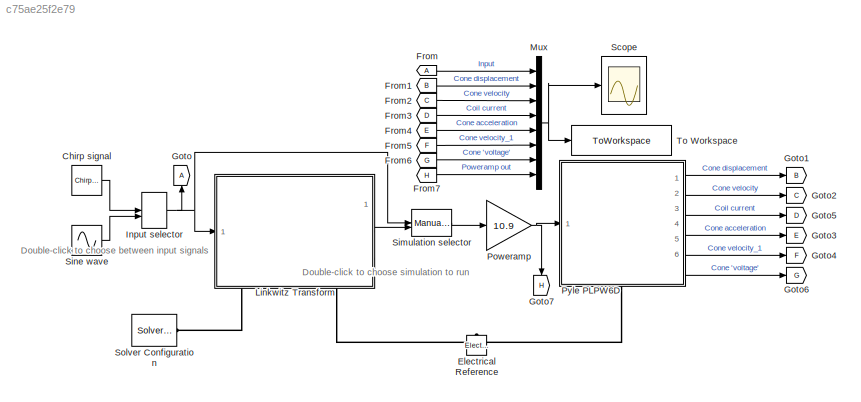
MODEL slx_c75ae25f2e79
KIND model
CONFIG AbsTol = auto
CONFIG EnableMultiTasking = off
CONFIG FixedStep = 0.000001
CONFIG MaxStep = auto
CONFIG MinStep = auto
CONFIG RelTol = 1e-3
CONFIG SampleTimeConstraint = Unconstrained
CONFIG Solver = VariableStepAuto
CONFIG SolverName = VariableStepAuto
CONFIG StartTime = 0.0
CONFIG StopTime = 1
BLOCK [Reference] Chirp signal  REF=simulink/Sources/Chirp Signal
  Ports = [0, 1]
  SourceBlock = simulink/Sources/Chirp Signal
  SourceProductBaseCode = SL
  SourceType = chirp
BLOCK [Reference] Electrical Reference  REF=fl_lib/Electrical/Electrical Elements/Electrical Reference
  NameLocation = right
  Ports = [0, 0, 0, 0, 0, 1]
  SourceBlock = fl_lib/Electrical/Electrical Elements/Electrical Reference
  SourceProductBaseCode = MT,SS
  SourceType = Electrical Reference
BLOCK [From] From
BLOCK [From] From1
  GotoTag = B
BLOCK [From] From2
  GotoTag = C
BLOCK [From] From3
  GotoTag = D
BLOCK [From] From4
  GotoTag = E
BLOCK [From] From5
  GotoTag = F
BLOCK [From] From6
  GotoTag = G
BLOCK [From] From7
  GotoTag = H
BLOCK [Goto] Goto
  NameLocation = right
BLOCK [Goto] Goto1
  GotoTag = B
BLOCK [Goto] Goto2
  GotoTag = C
BLOCK [Goto] Goto3
  GotoTag = E
BLOCK [Goto] Goto4
  GotoTag = F
BLOCK [Goto] Goto5
  GotoTag = D
BLOCK [Goto] Goto6
  GotoTag = G
BLOCK [Goto] Goto7
  GotoTag = H
  NameLocation = left
BLOCK [ManualSwitch] Input selector
  CurrentSetting = 0
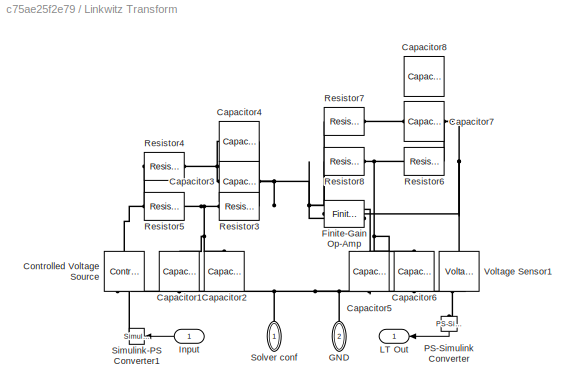
BLOCK [SubSystem] Linkwitz Transform
  PortSchema = {"entries":[{"content":{"sides":[{"content":{"connectorIds":["In1"]},"type":"ConnectorPlacement.EquallySpacedRectSide","uuid":"c176afcd-22cf-4a96-95a5-2f4a01c27625"},{"content":{"connectorIds":["Out1"],"side":"RIGHT"},"type":"ConnectorPlacement.EquallySpacedRectSide","uuid":"3d91d6b3-2fcd-4fa9-a9e2-01e15fe19188"},{"content":{"connectorIds":[],"side":"TOP"},"type":"ConnectorPlacement.EquallySpacedR...<+403ch>
  Ports = [1, 1, 0, 0, 0, 0, 2]
  RequestExecContextInheritance = off
BLOCK [Reference] Linkwitz Transform/Capacitor1  REF=fl_lib/Electrical/Electrical Elements/Capacitor
  NameLocation = left
  Ports = [0, 0, 0, 0, 0, 1, 1]
  SourceBlock = fl_lib/Electrical/Electrical Elements/Capacitor
  SourceProductBaseCode = SS
  SourceType = Capacitor
BLOCK [Reference] Linkwitz Transform/Capacitor2  REF=fl_lib/Electrical/Electrical Elements/Capacitor
  NameLocation = left
  Ports = [0, 0, 0, 0, 0, 1, 1]
  SourceBlock = fl_lib/Electrical/Electrical Elements/Capacitor
  SourceProductBaseCode = SS
  SourceType = Capacitor
BLOCK [Reference] Linkwitz Transform/Capacitor3  REF=fl_lib/Electrical/Electrical Elements/Capacitor
  Ports = [0, 0, 0, 0, 0, 1, 1]
  SourceBlock = fl_lib/Electrical/Electrical Elements/Capacitor
  SourceProductBaseCode = SS
  SourceType = Capacitor
BLOCK [Reference] Linkwitz Transform/Capacitor4  REF=fl_lib/Electrical/Electrical Elements/Capacitor
  Ports = [0, 0, 0, 0, 0, 1, 1]
  SourceBlock = fl_lib/Electrical/Electrical Elements/Capacitor
  SourceProductBaseCode = SS
  SourceType = Capacitor
BLOCK [Reference] Linkwitz Transform/Capacitor5  REF=fl_lib/Electrical/Electrical Elements/Capacitor
  NameLocation = left
  Ports = [0, 0, 0, 0, 0, 1, 1]
  SourceBlock = fl_lib/Electrical/Electrical Elements/Capacitor
  SourceProductBaseCode = SS
  SourceType = Capacitor
BLOCK [Reference] Linkwitz Transform/Capacitor6  REF=fl_lib/Electrical/Electrical Elements/Capacitor
  NameLocation = left
  Ports = [0, 0, 0, 0, 0, 1, 1]
  SourceBlock = fl_lib/Electrical/Electrical Elements/Capacitor
  SourceProductBaseCode = SS
  SourceType = Capacitor
BLOCK [Reference] Linkwitz Transform/Capacitor7  REF=fl_lib/Electrical/Electrical Elements/Capacitor
  Ports = [0, 0, 0, 0, 0, 1, 1]
  SourceBlock = fl_lib/Electrical/Electrical Elements/Capacitor
  SourceProductBaseCode = SS
  SourceType = Capacitor
BLOCK [Reference] Linkwitz Transform/Capacitor8  REF=fl_lib/Electrical/Electrical Elements/Capacitor
  Ports = [0, 0, 0, 0, 0, 1, 1]
  SourceBlock = fl_lib/Electrical/Electrical Elements/Capacitor
  SourceProductBaseCode = SS
  SourceType = Capacitor
BLOCK [Reference] Linkwitz Transform/Controlled Voltage Source  REF=fl_lib/Electrical/Electrical Sources/Controlled Voltage
Source
  NameLocation = right
  Ports = [0, 0, 0, 0, 0, 1, 2]
  SourceBlock = fl_lib/Electrical/Electrical Sources/Controlled Voltage\nSource
  SourceProductBaseCode = SS
  SourceType = Controlled Voltage\nSource
BLOCK [Reference] Linkwitz Transform/Finite-Gain Op-Amp  REF=ee_lib/Integrated Circuits/Finite-Gain Op-Amp
  Ports = [0, 0, 0, 0, 0, 2, 1]
  SourceBlock = ee_lib/Integrated Circuits/Finite-Gain Op-Amp
  SourceProductBaseCode = PS
  SourceType = Finite-Gain Op-Amp
BLOCK [PMIOPort] Linkwitz Transform/GND
  NameLocation = left
  Port = 2
  Side = Right
BLOCK [Inport] Linkwitz Transform/Input
  NameLocation = top
BLOCK [Outport] Linkwitz Transform/LT Out
  NameLocation = top
BLOCK [Reference] Linkwitz Transform/PS-Simulink Converter  REF=nesl_utility/PS-Simulink
Converter
  NameLocation = left
  Ports = [0, 1, 0, 0, 0, 1]
  SourceBlock = nesl_utility/PS-Simulink\nConverter
  SourceProductBaseCode = SS
  SourceType = PS-Simulink\nConverter
BLOCK [Reference] Linkwitz Transform/Resistor3  REF=fl_lib/Electrical/Electrical Elements/Resistor
  Ports = [0, 0, 0, 0, 0, 1, 1]
  SourceBlock = fl_lib/Electrical/Electrical Elements/Resistor
  SourceProductBaseCode = SS
  SourceType = Resistor
BLOCK [Reference] Linkwitz Transform/Resistor4  REF=fl_lib/Electrical/Electrical Elements/Resistor
  Ports = [0, 0, 0, 0, 0, 1, 1]
  SourceBlock = fl_lib/Electrical/Electrical Elements/Resistor
  SourceProductBaseCode = SS
  SourceType = Resistor
BLOCK [Reference] Linkwitz Transform/Resistor5  REF=fl_lib/Electrical/Electrical Elements/Resistor
  Ports = [0, 0, 0, 0, 0, 1, 1]
  SourceBlock = fl_lib/Electrical/Electrical Elements/Resistor
  SourceProductBaseCode = SS
  SourceType = Resistor
BLOCK [Reference] Linkwitz Transform/Resistor6  REF=fl_lib/Electrical/Electrical Elements/Resistor
  Ports = [0, 0, 0, 0, 0, 1, 1]
  SourceBlock = fl_lib/Electrical/Electrical Elements/Resistor
  SourceProductBaseCode = SS
  SourceType = Resistor
BLOCK [Reference] Linkwitz Transform/Resistor7  REF=fl_lib/Electrical/Electrical Elements/Resistor
  Ports = [0, 0, 0, 0, 0, 1, 1]
  SourceBlock = fl_lib/Electrical/Electrical Elements/Resistor
  SourceProductBaseCode = SS
  SourceType = Resistor
BLOCK [Reference] Linkwitz Transform/Resistor8  REF=fl_lib/Electrical/Electrical Elements/Resistor
  Ports = [0, 0, 0, 0, 0, 1, 1]
  SourceBlock = fl_lib/Electrical/Electrical Elements/Resistor
  SourceProductBaseCode = SS
  SourceType = Resistor
BLOCK [Reference] Linkwitz Transform/Simulink-PS Converter1  REF=nesl_utility/Simulink-PS
Converter
  NameLocation = top
  Ports = [1, 0, 0, 0, 0, 0, 1]
  SourceBlock = nesl_utility/Simulink-PS\nConverter
  SourceProductBaseCode = SS
  SourceType = Simulink-PS\nConverter
BLOCK [PMIOPort] Linkwitz Transform/Solver conf
  NameLocation = left
  Side = Right
BLOCK [Reference] Linkwitz Transform/Voltage Sensor1  REF=fl_lib/Electrical/Electrical Sensors/Voltage Sensor
  NameLocation = right
  Ports = [0, 0, 0, 0, 0, 1, 2]
  SourceBlock = fl_lib/Electrical/Electrical Sensors/Voltage Sensor
  SourceProductBaseCode = SS
  SourceType = Voltage Sensor
BLOCK [Mux] Mux
  DisplayOption = bar
  Inputs = 8
  Ports = [8, 1]
BLOCK [Gain] Poweramp
  Gain = 10.9
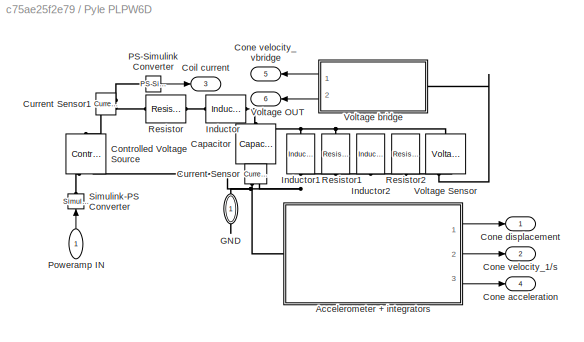
BLOCK [SubSystem] Pyle PLPW6D
  PortSchema = {"entries":[{"content":{"sides":[{"content":{"connectorIds":["In1"]},"type":"ConnectorPlacement.EquallySpacedRectSide","uuid":"55797129-f68c-4c08-9179-5bd73ddaf456"},{"content":{"connectorIds":["Out1","Out2","Out3","Out4","Out5","Out6"],"side":"RIGHT"},"type":"ConnectorPlacement.EquallySpacedRectSide","uuid":"cd82eb0c-b61b-42dc-852e-e59ea1718ce1"},{"content":{"connectorIds":[],"side":"TOP"},"type"...<+429ch>
  Ports = [1, 6, 0, 0, 0, 0, 1]
  RequestExecContextInheritance = off
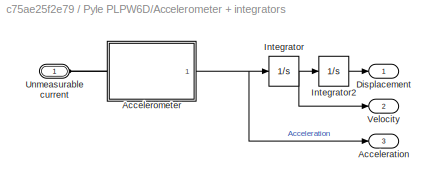
BLOCK [SubSystem] Pyle PLPW6D/Accelerometer + integrators
  Ports = [0, 3, 0, 0, 0, 1]
  RequestExecContextInheritance = off
BLOCK [Outport] Pyle PLPW6D/Accelerometer + integrators/Acceleration
  Port = 3
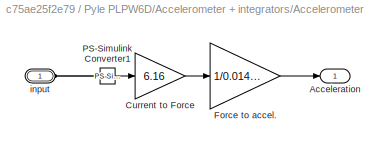
BLOCK [SubSystem] Pyle PLPW6D/Accelerometer + integrators/Accelerometer
  Ports = [0, 1, 0, 0, 0, 1]
  RequestExecContextInheritance = off
BLOCK [Outport] Pyle PLPW6D/Accelerometer + integrators/Accelerometer/Acceleration
BLOCK [Gain] Pyle PLPW6D/Accelerometer + integrators/Accelerometer/Current to Force
  Gain = 6.16
BLOCK [Gain] Pyle PLPW6D/Accelerometer + integrators/Accelerometer/Force to accel.
  Gain = 1/0.01476
BLOCK [Reference] Pyle PLPW6D/Accelerometer + integrators/Accelerometer/PS-Simulink Converter1  REF=nesl_utility/PS-Simulink
Converter
  Ports = [0, 1, 0, 0, 0, 1]
  SourceBlock = nesl_utility/PS-Simulink\nConverter
  SourceProductBaseCode = SS
  SourceType = PS-Simulink\nConverter
BLOCK [PMIOPort] Pyle PLPW6D/Accelerometer + integrators/Accelerometer/input
  Side = Left
BLOCK [Outport] Pyle PLPW6D/Accelerometer + integrators/Displacement
BLOCK [Integrator] Pyle PLPW6D/Accelerometer + integrators/Integrator
  Ports = [1, 1]
BLOCK [Integrator] Pyle PLPW6D/Accelerometer + integrators/Integrator2
  Ports = [1, 1]
BLOCK [PMIOPort] Pyle PLPW6D/Accelerometer + integrators/Unmeasurable current
  Side = Left
BLOCK [Outport] Pyle PLPW6D/Accelerometer + integrators/Velocity
  Port = 2
BLOCK [Reference] Pyle PLPW6D/Capacitor  REF=fl_lib/Electrical/Electrical Elements/Capacitor
  NameLocation = left
  Ports = [0, 0, 0, 0, 0, 1, 1]
  SourceBlock = fl_lib/Electrical/Electrical Elements/Capacitor
  SourceProductBaseCode = SS
  SourceType = Capacitor
BLOCK [Outport] Pyle PLPW6D/Coil current
  Port = 3
BLOCK [Outport] Pyle PLPW6D/Cone acceleration
  Port = 4
BLOCK [Outport] Pyle PLPW6D/Cone displacement
BLOCK [Outport] Pyle PLPW6D/Cone velocity_1//s
  Port = 2
BLOCK [Outport] Pyle PLPW6D/Cone velocity_vbridge
  NameLocation = top
  Port = 5
BLOCK [Reference] Pyle PLPW6D/Controlled Voltage Source  REF=fl_lib/Electrical/Electrical Sources/Controlled Voltage
Source
  NameLocation = right
  Ports = [0, 0, 0, 0, 0, 1, 2]
  SourceBlock = fl_lib/Electrical/Electrical Sources/Controlled Voltage\nSource
  SourceProductBaseCode = SS
  SourceType = Controlled Voltage\nSource
BLOCK [Reference] Pyle PLPW6D/Current Sensor  REF=fl_lib/Electrical/Electrical Sensors/Current Sensor
  NameLocation = left
  Ports = [0, 0, 0, 0, 0, 1, 2]
  SourceBlock = fl_lib/Electrical/Electrical Sensors/Current Sensor
  SourceProductBaseCode = SS
  SourceType = Current Sensor
BLOCK [Reference] Pyle PLPW6D/Current Sensor1  REF=fl_lib/Electrical/Electrical Sensors/Current Sensor
  Ports = [0, 0, 0, 0, 0, 1, 2]
  SourceBlock = fl_lib/Electrical/Electrical Sensors/Current Sensor
  SourceProductBaseCode = SS
  SourceType = Current Sensor
BLOCK [PMIOPort] Pyle PLPW6D/GND
  NameLocation = left
  Side = Right
BLOCK [Reference] Pyle PLPW6D/Inductor  REF=fl_lib/Electrical/Electrical Elements/Inductor
  Ports = [0, 0, 0, 0, 0, 1, 1]
  SourceBlock = fl_lib/Electrical/Electrical Elements/Inductor
  SourceProductBaseCode = SS
  SourceType = Inductor
BLOCK [Reference] Pyle PLPW6D/Inductor1  REF=fl_lib/Electrical/Electrical Elements/Inductor
  NameLocation = left
  Ports = [0, 0, 0, 0, 0, 1, 1]
  SourceBlock = fl_lib/Electrical/Electrical Elements/Inductor
  SourceProductBaseCode = SS
  SourceType = Inductor
BLOCK [Reference] Pyle PLPW6D/Inductor2  REF=fl_lib/Electrical/Electrical Elements/Inductor
  NameLocation = left
  Ports = [0, 0, 0, 0, 0, 1, 1]
  SourceBlock = fl_lib/Electrical/Electrical Elements/Inductor
  SourceProductBaseCode = SS
  SourceType = Inductor
BLOCK [Reference] Pyle PLPW6D/PS-Simulink Converter  REF=nesl_utility/PS-Simulink
Converter
  Ports = [0, 1, 0, 0, 0, 1]
  SourceBlock = nesl_utility/PS-Simulink\nConverter
  SourceProductBaseCode = SS
  SourceType = PS-Simulink\nConverter
BLOCK [Inport] Pyle PLPW6D/Poweramp IN
  NameLocation = right
BLOCK [Reference] Pyle PLPW6D/Resistor  REF=fl_lib/Electrical/Electrical Elements/Resistor
  Ports = [0, 0, 0, 0, 0, 1, 1]
  SourceBlock = fl_lib/Electrical/Electrical Elements/Resistor
  SourceProductBaseCode = SS
  SourceType = Resistor
BLOCK [Reference] Pyle PLPW6D/Resistor1  REF=fl_lib/Electrical/Electrical Elements/Resistor
  NameLocation = left
  Ports = [0, 0, 0, 0, 0, 1, 1]
  SourceBlock = fl_lib/Electrical/Electrical Elements/Resistor
  SourceProductBaseCode = SS
  SourceType = Resistor
BLOCK [Reference] Pyle PLPW6D/Resistor2  REF=fl_lib/Electrical/Electrical Elements/Resistor
  NameLocation = left
  Ports = [0, 0, 0, 0, 0, 1, 1]
  SourceBlock = fl_lib/Electrical/Electrical Elements/Resistor
  SourceProductBaseCode = SS
  SourceType = Resistor
BLOCK [Reference] Pyle PLPW6D/Simulink-PS Converter  REF=nesl_utility/Simulink-PS
Converter
  NameLocation = right
  Ports = [1, 0, 0, 0, 0, 0, 1]
  SourceBlock = nesl_utility/Simulink-PS\nConverter
  SourceProductBaseCode = SS
  SourceType = Simulink-PS\nConverter
BLOCK [Outport] Pyle PLPW6D/Voltage OUT
  NameLocation = top
  Port = 6
BLOCK [Reference] Pyle PLPW6D/Voltage Sensor  REF=fl_lib/Electrical/Electrical Sensors/Voltage Sensor
  NameLocation = right
  Ports = [0, 0, 0, 0, 0, 1, 2]
  SourceBlock = fl_lib/Electrical/Electrical Sensors/Voltage Sensor
  SourceProductBaseCode = SS
  SourceType = Voltage Sensor
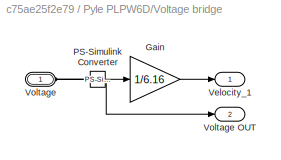
BLOCK [SubSystem] Pyle PLPW6D/Voltage bridge
  NameLocation = top
  Ports = [0, 2, 0, 0, 0, 1]
  RequestExecContextInheritance = off
BLOCK [Gain] Pyle PLPW6D/Voltage bridge/Gain
  Gain = 1/6.16
BLOCK [Reference] Pyle PLPW6D/Voltage bridge/PS-Simulink Converter  REF=nesl_utility/PS-Simulink
Converter
  Ports = [0, 1, 0, 0, 0, 1]
  SourceBlock = nesl_utility/PS-Simulink\nConverter
  SourceProductBaseCode = SS
  SourceType = PS-Simulink\nConverter
BLOCK [Outport] Pyle PLPW6D/Voltage bridge/Velocity_1
BLOCK [PMIOPort] Pyle PLPW6D/Voltage bridge/Voltage
  Side = Left
BLOCK [Outport] Pyle PLPW6D/Voltage bridge/Voltage OUT
  Port = 2
BLOCK [Scope] Scope
  Floating = off
  NumInputPorts = 1
  Ports = [1]
  ScopeSpecificationString = Simulink.scopes.TimeScopeBlockCfg('CurrentConfiguration', extmgr.ConfigurationSet(extmgr.Configuration('Core','General UI',true),extmgr.Configuration('Core','Source UI',true),extmgr.Configuration('Sources','WiredSimulink',true,'DataLogging',true,'DataLoggingVariableName','OpenLoopData','DataLoggingLimitDataPoints',true,'DataLoggingMaxPoints','100000','DataLoggingSaveFormat','StructureWithTime'),ex...<+1883ch>
BLOCK [ManualSwitch] Simulation selector
  CurrentSetting = 0
BLOCK [Sin] Sine wave
  Frequency = 125
  Ports = [0, 1]
  SampleTime = 0
BLOCK [Reference] Solver Configuration  REF=nesl_utility/Solver
Configuration
  Ports = [0, 0, 0, 0, 0, 0, 1]
  SourceBlock = nesl_utility/Solver\nConfiguration
  SourceProductBaseCode = SS
  SourceType = Solver\nConfiguration
BLOCK [ToWorkspace] To Workspace
  FixptAsFi = on
  MaxDataPoints = inf
  Ports = [1]
  SampleTime = -1
  Save2DSignal = 2-D array (concatenate along first dimension)
  VariableName = open_lt
ANNOTATION (root): Double-click to choose between input signals
ANNOTATION (root): Double-click to choose simulation to run
LINE Chirp signal:1 -> Input selector:1
LINE From1:1 -> Mux:2
LINE From2:1 -> Mux:3
LINE From3:1 -> Mux:4
LINE From4:1 -> Mux:5
LINE From5:1 -> Mux:6
LINE From6:1 -> Mux:7
LINE From7:1 -> Mux:8
LINE From:1 -> Mux:1
NET Input selector:1 -> Goto:1, Linkwitz Transform:1, Simulation selector:1
LINE Linkwitz Transform/Input:1 -> Linkwitz Transform/Simulink-PS Converter1:1
LINE Linkwitz Transform/PS-Simulink Converter:1 -> Linkwitz Transform/LT Out:1
LINE Linkwitz Transform:1 -> Simulation selector:2
NET Mux:1 -> Scope:1, To Workspace:1
NET Poweramp:1 -> Goto7:1, Pyle PLPW6D:1
LINE Pyle PLPW6D/Accelerometer + integrators/Accelerometer/Current to Force:1 -> Pyle PLPW6D/Accelerometer + integrators/Accelerometer/Force to accel.:1
LINE Pyle PLPW6D/Accelerometer + integrators/Accelerometer/Force to accel.:1 -> Pyle PLPW6D/Accelerometer + integrators/Accelerometer/Acceleration:1
LINE Pyle PLPW6D/Accelerometer + integrators/Accelerometer/PS-Simulink Converter1:1 -> Pyle PLPW6D/Accelerometer + integrators/Accelerometer/Current to Force:1
NET Pyle PLPW6D/Accelerometer + integrators/Accelerometer:1 -> Pyle PLPW6D/Accelerometer + integrators/Acceleration:1, Pyle PLPW6D/Accelerometer + integrators/Integrator:1
LINE Pyle PLPW6D/Accelerometer + integrators/Integrator2:1 -> Pyle PLPW6D/Accelerometer + integrators/Displacement:1
NET Pyle PLPW6D/Accelerometer + integrators/Integrator:1 -> Pyle PLPW6D/Accelerometer + integrators/Integrator2:1, Pyle PLPW6D/Accelerometer + integrators/Velocity:1
LINE Pyle PLPW6D/Accelerometer + integrators:1 -> Pyle PLPW6D/Cone displacement:1
LINE Pyle PLPW6D/Accelerometer + integrators:2 -> Pyle PLPW6D/Cone velocity_1//s:1
LINE Pyle PLPW6D/Accelerometer + integrators:3 -> Pyle PLPW6D/Cone acceleration:1
LINE Pyle PLPW6D/PS-Simulink Converter:1 -> Pyle PLPW6D/Coil current:1
LINE Pyle PLPW6D/Poweramp IN:1 -> Pyle PLPW6D/Simulink-PS Converter:1
LINE Pyle PLPW6D/Voltage bridge/Gain:1 -> Pyle PLPW6D/Voltage bridge/Velocity_1:1
NET Pyle PLPW6D/Voltage bridge/PS-Simulink Converter:1 -> Pyle PLPW6D/Voltage bridge/Gain:1, Pyle PLPW6D/Voltage bridge/Voltage OUT:1
LINE Pyle PLPW6D/Voltage bridge:1 -> Pyle PLPW6D/Cone velocity_vbridge:1
LINE Pyle PLPW6D/Voltage bridge:2 -> Pyle PLPW6D/Voltage OUT:1
LINE Pyle PLPW6D:1 -> Goto1:1
LINE Pyle PLPW6D:2 -> Goto2:1
LINE Pyle PLPW6D:3 -> Goto5:1
LINE Pyle PLPW6D:4 -> Goto3:1
LINE Pyle PLPW6D:5 -> Goto4:1
LINE Pyle PLPW6D:6 -> Goto6:1
LINE Simulation selector:1 -> Poweramp:1
LINE Sine wave:1 -> Input selector:2
PNET net1: Electrical Reference:LConn1 -- Linkwitz Transform:RConn2 -- Pyle PLPW6D:RConn1
PNET net2: Linkwitz Transform/Capacitor1:LConn1 -- Linkwitz Transform/Capacitor2:LConn1 -- Linkwitz Transform/Resistor3:LConn1 -- Linkwitz Transform/Resistor5:RConn1
PNET net3: Linkwitz Transform/Capacitor1:RConn1 -- Linkwitz Transform/Capacitor2:RConn1 -- Linkwitz Transform/Capacitor5:RConn1 -- Linkwitz Transform/Capacitor6:RConn1 -- Linkwitz Transform/Controlled Voltage Source:RConn2 -- Linkwitz Transform/Finite-Gain Op-Amp:LConn1 -- Linkwitz Transform/GND:RConn1 -- Linkwitz Transform/Solver conf:RConn1 -- Linkwitz Transform/Voltage Sensor1:RConn2
PNET net4: Linkwitz Transform/Capacitor3:LConn1 -- Linkwitz Transform/Capacitor4:LConn1 -- Linkwitz Transform/Resistor4:RConn1
PNET net5: Linkwitz Transform/Capacitor3:RConn1 -- Linkwitz Transform/Capacitor4:RConn1 -- Linkwitz Transform/Finite-Gain Op-Amp:LConn2 -- Linkwitz Transform/Resistor3:RConn1 -- Linkwitz Transform/Resistor7:LConn1 -- Linkwitz Transform/Resistor8:LConn1
PNET net6: Linkwitz Transform/Capacitor5:LConn1 -- Linkwitz Transform/Capacitor6:LConn1 -- Linkwitz Transform/Resistor6:LConn1 -- Linkwitz Transform/Resistor8:RConn1
PLINE Linkwitz Transform/Capacitor7:LConn1 -- Linkwitz Transform/Resistor7:RConn1
PNET net7: Linkwitz Transform/Capacitor7:RConn1 -- Linkwitz Transform/Finite-Gain Op-Amp:RConn1 -- Linkwitz Transform/Resistor6:RConn1 -- Linkwitz Transform/Voltage Sensor1:LConn1
PNET net8: Linkwitz Transform/Controlled Voltage Source:LConn1 -- Linkwitz Transform/Resistor4:LConn1 -- Linkwitz Transform/Resistor5:LConn1
PLINE Linkwitz Transform/Controlled Voltage Source:RConn1 -- Linkwitz Transform/Simulink-PS Converter1:RConn1
PLINE Linkwitz Transform/PS-Simulink Converter:LConn1 -- Linkwitz Transform/Voltage Sensor1:RConn1
PLINE Linkwitz Transform:RConn1 -- Solver Configuration:RConn1
PLINE Pyle PLPW6D/Accelerometer + integrators/Accelerometer/PS-Simulink Converter1:LConn1 -- Pyle PLPW6D/Accelerometer + integrators/Accelerometer/input:RConn1
PLINE Pyle PLPW6D/Accelerometer + integrators/Accelerometer:LConn1 -- Pyle PLPW6D/Accelerometer + integrators/Unmeasurable current:RConn1
PLINE Pyle PLPW6D/Accelerometer + integrators:LConn1 -- Pyle PLPW6D/Current Sensor:RConn1
PNET net9: Pyle PLPW6D/Capacitor:LConn1 -- Pyle PLPW6D/Inductor1:LConn1 -- Pyle PLPW6D/Inductor:RConn1 -- Pyle PLPW6D/Resistor1:LConn1 -- Pyle PLPW6D/Voltage Sensor:LConn1
PLINE Pyle PLPW6D/Capacitor:RConn1 -- Pyle PLPW6D/Current Sensor:LConn1
PLINE Pyle PLPW6D/Controlled Voltage Source:LConn1 -- Pyle PLPW6D/Current Sensor1:LConn1
PLINE Pyle PLPW6D/Controlled Voltage Source:RConn1 -- Pyle PLPW6D/Simulink-PS Converter:RConn1
PNET net10: Pyle PLPW6D/Controlled Voltage Source:RConn2 -- Pyle PLPW6D/Current Sensor:RConn2 -- Pyle PLPW6D/GND:RConn1 -- Pyle PLPW6D/Inductor1:RConn1 -- Pyle PLPW6D/Inductor2:RConn1 -- Pyle PLPW6D/Resistor1:RConn1 -- Pyle PLPW6D/Resistor2:RConn1 -- Pyle PLPW6D/Voltage Sensor:RConn2
PLINE Pyle PLPW6D/Current Sensor1:RConn1 -- Pyle PLPW6D/PS-Simulink Converter:LConn1
PLINE Pyle PLPW6D/Current Sensor1:RConn2 -- Pyle PLPW6D/Resistor:LConn1
PLINE Pyle PLPW6D/Inductor:LConn1 -- Pyle PLPW6D/Resistor:RConn1
PLINE Pyle PLPW6D/Voltage Sensor:RConn1 -- Pyle PLPW6D/Voltage bridge:LConn1
PLINE Pyle PLPW6D/Voltage bridge/PS-Simulink Converter:LConn1 -- Pyle PLPW6D/Voltage bridge/Voltage:RConn1
note: NET lines group one-source signal fan-out (src -> all destinations, sorted); 1:1 wires keep LINE; PNET lines group multi-terminal physical nets as a canonical sorted terminal list (undirected conserving connections); 2-terminal nets keep the pairwise PLINE form
